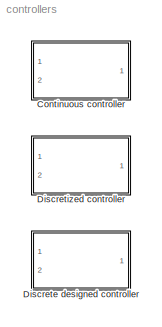
MODEL controllers
KIND model
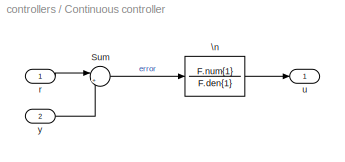
BLOCK [SubSystem] Continuous controller
  Ports = [2, 1]
  RequestExecContextInheritance = off
  SID = 6
BLOCK [Sum] Continuous controller/Sum
  IconShape = round
  InputSameDT = off
  Inputs = |+-
  OutDataTypeStr = Inherit: Inherit via internal rule
  Ports = [2, 1]
  SID = 5
BLOCK [TransferFcn] Continuous controller/\n
  Denominator = F.den{1}
  Numerator = F.num{1}
  SID = 1
BLOCK [Inport] Continuous controller/r
  IconDisplay = Port number
  SID = 7
BLOCK [Outport] Continuous controller/u
  IconDisplay = Port number
  SID = 9
BLOCK [Inport] Continuous controller/y
  IconDisplay = Port number
  Port = 2
  SID = 8
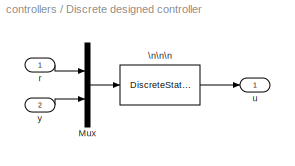
BLOCK [SubSystem] Discrete designed controller
  Ports = [2, 1]
  RequestExecContextInheritance = off
  SID = 18
BLOCK [Mux] Discrete designed controller/Mux
  DisplayOption = bar
  Inputs = 2
  Ports = [2, 1]
  SID = 26
BLOCK [DiscreteStateSpace] Discrete designed controller/\n\n\n
  A = Phi-Gamma*L-K*C
  B = [lr * Gamma K]
  C = -L
  D = [lr 0]
  SID = 24
  SampleTime = Ts
BLOCK [Inport] Discrete designed controller/r
  IconDisplay = Port number
  SID = 19
BLOCK [Outport] Discrete designed controller/u
  IconDisplay = Port number
  SID = 23
BLOCK [Inport] Discrete designed controller/y
  IconDisplay = Port number
  Port = 2
  SID = 20
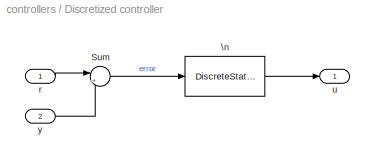
BLOCK [SubSystem] Discretized controller
  Ports = [2, 1]
  RequestExecContextInheritance = off
  SID = 11
BLOCK [Sum] Discretized controller/Sum
  IconShape = round
  InputSameDT = off
  Inputs = |+-
  OutDataTypeStr = Inherit: Inherit via internal rule
  Ports = [2, 1]
  SID = 14
BLOCK [DiscreteStateSpace] Discretized controller/\n
  A = A_discretized
  B = B_discretized
  C = C_discretized
  D = D_discretized
  SID = 17
  SampleTime = Ts
BLOCK [Inport] Discretized controller/r
  IconDisplay = Port number
  SID = 12
BLOCK [Outport] Discretized controller/u
  IconDisplay = Port number
  SID = 16
BLOCK [Inport] Discretized controller/y
  IconDisplay = Port number
  Port = 2
  SID = 13
LINE Continuous controller/Sum:1 -> Continuous controller/\n:1
LINE Continuous controller/\n:1 -> Continuous controller/u:1
LINE Continuous controller/r:1 -> Continuous controller/Sum:1
LINE Continuous controller/y:1 -> Continuous controller/Sum:2
LINE Discrete designed controller/Mux:1 -> Discrete designed controller/\n\n\n:1
LINE Discrete designed controller/\n\n\n:1 -> Discrete designed controller/u:1
LINE Discrete designed controller/r:1 -> Discrete designed controller/Mux:1
LINE Discrete designed controller/y:1 -> Discrete designed controller/Mux:2
LINE Discretized controller/Sum:1 -> Discretized controller/\n:1
LINE Discretized controller/\n:1 -> Discretized controller/u:1
LINE Discretized controller/r:1 -> Discretized controller/Sum:1
LINE Discretized controller/y:1 -> Discretized controller/Sum:2
